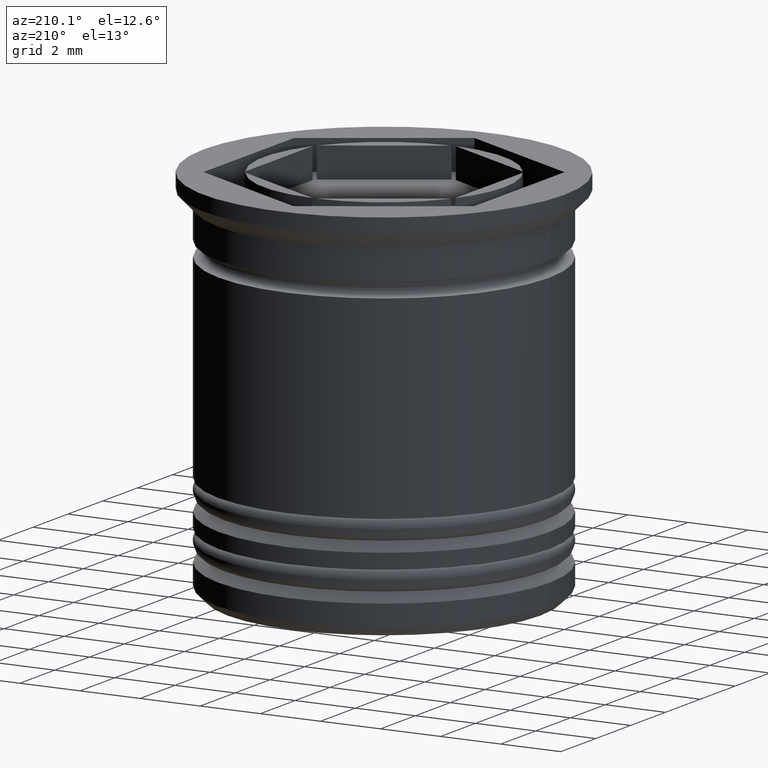
[diagram: clean part render]
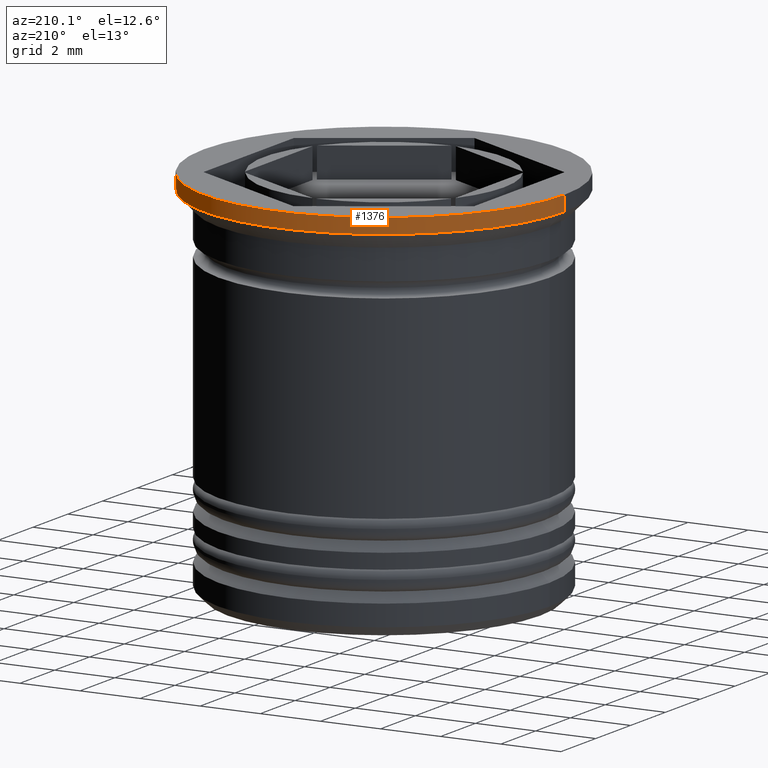
[diagram: same view with one face highlighted and labeled with its STEP entity id]
A machine part, auxiliary view. The second image highlights one B-rep face of the part: STEP entity #1376.
In plain terms, the highlighted cylindrical surface (partial cylindrical patch) has radius 6 mm, axis along (-0, -0, 1).
Its self-contained STEP definition (entity closure, byte-faithful):
#117 = EDGE_LOOP ( 'NONE', ( #912, #1786, #278, #1459 ) ) ;
#123 = EDGE_CURVE ( 'NONE', #353, #577, #1016, .T. ) ;
#141 = DIRECTION ( 'NONE',  ( -0.000000000000000000, -0.000000000000000000, 1.000000000000000000 ) ) ;
#278 = ORIENTED_EDGE ( 'NONE', *, *, #1300, .F. ) ;
#301 = CYLINDRICAL_SURFACE ( 'NONE', #894, 6.000000000000000000 ) ;
#353 = VERTEX_POINT ( 'NONE', #1518 ) ;
#374 = CARTESIAN_POINT ( 'NONE',  ( 0.000000000000000000, 0.000000000000000000, -0.4999999999999982792 ) ) ;
#503 = CARTESIAN_POINT ( 'NONE',  ( 6.000000000000000000, 0.000000000000000000, 0.000000000000000000 ) ) ;
#512 = LINE ( 'NONE', #1895, #1487 ) ;
#577 = VERTEX_POINT ( 'NONE', #1586 ) ;
#586 = VERTEX_POINT ( 'NONE', #1763 ) ;
#712 = CARTESIAN_POINT ( 'NONE',  ( -6.000000000000000000, 7.347880794884119736E-16, 0.000000000000000000 ) ) ;
#894 = AXIS2_PLACEMENT_3D ( 'NONE', #1842, #141, #919 ) ;
#899 = DIRECTION ( 'NONE',  ( 1.000000000000000000, 0.000000000000000000, 0.000000000000000000 ) ) ;
#912 = ORIENTED_EDGE ( 'NONE', *, *, #1834, .T. ) ;
#919 = DIRECTION ( 'NONE',  ( 1.000000000000000000, 0.000000000000000000, 0.000000000000000000 ) ) ;
#995 = AXIS2_PLACEMENT_3D ( 'NONE', #1497, #1290, #899 ) ;
#1016 = LINE ( 'NONE', #712, #1198 ) ;
#1119 = DIRECTION ( 'NONE',  ( -1.000000000000000000, 0.000000000000000000, 0.000000000000000000 ) ) ;
#1198 = VECTOR ( 'NONE', #1305, 1000.000000000000000 ) ;
#1206 = FACE_OUTER_BOUND ( 'NONE', #117, .T. ) ;
#1263 = DIRECTION ( 'NONE',  ( -0.000000000000000000, -0.000000000000000000, 1.000000000000000000 ) ) ;
#1290 = DIRECTION ( 'NONE',  ( -0.000000000000000000, -0.000000000000000000, 1.000000000000000000 ) ) ;
#1300 = EDGE_CURVE ( 'NONE', #1719, #577, #1865, .T. ) ;
#1305 = DIRECTION ( 'NONE',  ( -0.000000000000000000, -0.000000000000000000, 1.000000000000000000 ) ) ;
#1376 = ADVANCED_FACE ( 'NONE', ( #1206 ), #301, .T. ) ;
#1459 = ORIENTED_EDGE ( 'NONE', *, *, #1796, .F. ) ;
#1487 = VECTOR ( 'NONE', #1556, 1000.000000000000000 ) ;
#1497 = CARTESIAN_POINT ( 'NONE',  ( 0.000000000000000000, 0.000000000000000000, 0.000000000000000000 ) ) ;
#1518 = CARTESIAN_POINT ( 'NONE',  ( -6.000000000000000000, 7.347880794884119736E-16, -0.4999999999999982792 ) ) ;
#1556 = DIRECTION ( 'NONE',  ( -0.000000000000000000, -0.000000000000000000, 1.000000000000000000 ) ) ;
#1586 = CARTESIAN_POINT ( 'NONE',  ( -6.000000000000000000, 7.347880794884119736E-16, 0.000000000000000000 ) ) ;
#1719 = VERTEX_POINT ( 'NONE', #503 ) ;
#1763 = CARTESIAN_POINT ( 'NONE',  ( 6.000000000000000000, 0.000000000000000000, -0.4999999999999982792 ) ) ;
#1786 = ORIENTED_EDGE ( 'NONE', *, *, #123, .T. ) ;
#1796 = EDGE_CURVE ( 'NONE', #586, #1719, #512, .T. ) ;
#1834 = EDGE_CURVE ( 'NONE', #586, #353, #1852, .T. ) ;
#1842 = CARTESIAN_POINT ( 'NONE',  ( 0.000000000000000000, 0.000000000000000000, 0.000000000000000000 ) ) ;
#1852 = CIRCLE ( 'NONE', #1982, 6.000000000000000000 ) ;
#1865 = CIRCLE ( 'NONE', #995, 6.000000000000000000 ) ;
#1895 = CARTESIAN_POINT ( 'NONE',  ( 6.000000000000000000, 0.000000000000000000, 0.000000000000000000 ) ) ;
#1982 = AXIS2_PLACEMENT_3D ( 'NONE', #374, #1263, #1119 ) ;